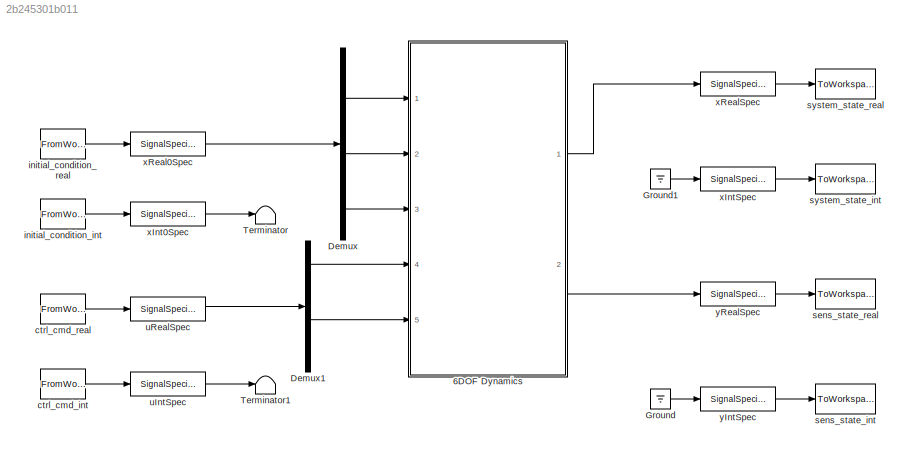
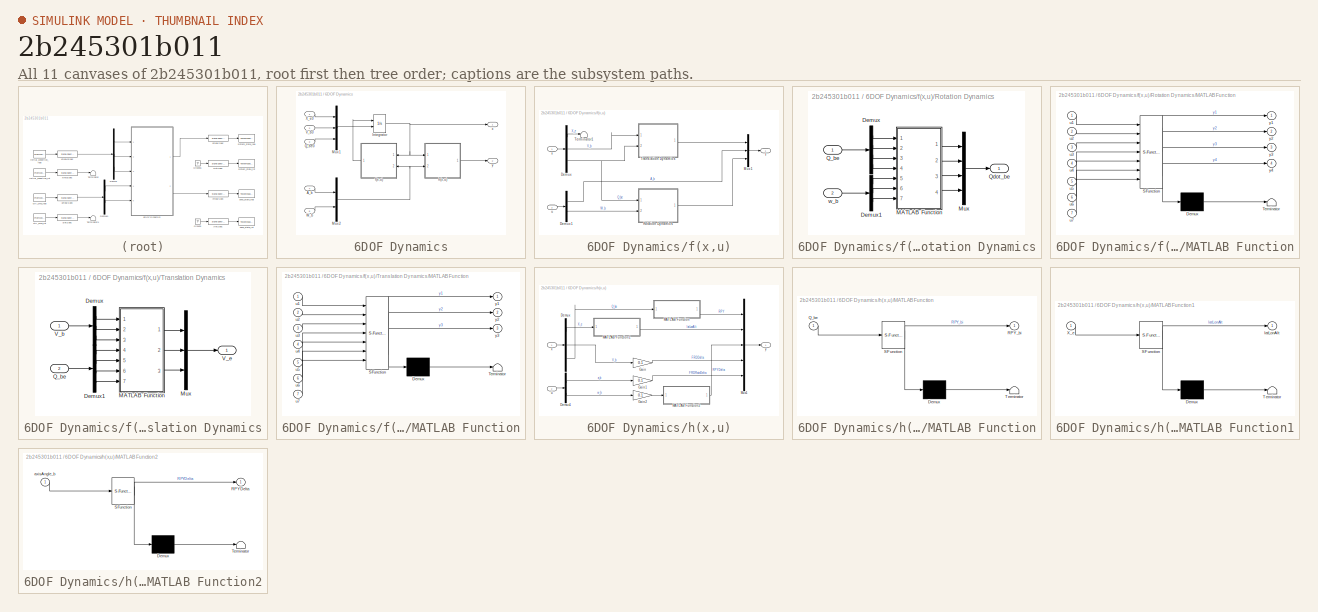
[diagram: thumbnail index - all 11 canvases of the model, root first then tree order]
MODEL slx_2b245301b011
KIND model
CONFIG AbsTol = auto
CONFIG FixedStep = auto
CONFIG MaxStep = auto
CONFIG MinStep = auto
CONFIG RelTol = 1e-3
CONFIG SampleTimeConstraint = Unconstrained
CONFIG Solver = ode45
CONFIG SolverMode = Auto
CONFIG SolverName = ode45
CONFIG StartTime = 0.0
CONFIG StopTime = 10.0
BLOCK [SubSystem] 6DOF Dynamics
  Ports = [5, 2]
  RequestExecContextInheritance = off
  Variant = off
BLOCK [Inport] 6DOF Dynamics/A_b
  IconDisplay = Port number
  Port = 4
BLOCK [Integrator] 6DOF Dynamics/Integrator
  ContinuousStateAttributes = 'ARDSimpleModelIntegratorState'
  InitialCondition = [veh_prms.xo(1:6);Euler2Quat(veh_prms.xo(7:9))]
  InitialConditionSource = external
  Ports = [2, 1]
BLOCK [Mux] 6DOF Dynamics/Mux1
  DisplayOption = bar
  Inputs = [3, 3, 4]
  Ports = [3, 1]
BLOCK [Mux] 6DOF Dynamics/Mux2
  DisplayOption = bar
  Inputs = [3, 3]
  Ports = [2, 1]
BLOCK [Inport] 6DOF Dynamics/Q_be0
  IconDisplay = Port number
  Port = 3
BLOCK [Inport] 6DOF Dynamics/V_b0
  IconDisplay = Port number
  Port = 2
BLOCK [Inport] 6DOF Dynamics/W_b
  IconDisplay = Port number
  Port = 5
BLOCK [Inport] 6DOF Dynamics/X_e0
  IconDisplay = Port number
BLOCK [SubSystem] 6DOF Dynamics/f(x,u)
  Ports = [2, 1]
  RequestExecContextInheritance = off
  Variant = off
BLOCK [Demux] 6DOF Dynamics/f(x,u)/Demux
  DisplayOption = bar
  Outputs = [3,3,4]
  Ports = [1, 3]
BLOCK [Demux] 6DOF Dynamics/f(x,u)/Demux1
  DisplayOption = bar
  Outputs = [3,3]
  Ports = [1, 2]
BLOCK [Mux] 6DOF Dynamics/f(x,u)/Mux1
  DisplayOption = bar
  Inputs = 3
  Ports = [3, 1]
BLOCK [SubSystem] 6DOF Dynamics/f(x,u)/Rotation Dynamics
  Ports = [2, 1]
  RequestExecContextInheritance = off
  Variant = off
BLOCK [Demux] 6DOF Dynamics/f(x,u)/Rotation Dynamics/Demux
  DisplayOption = bar
  Ports = [1, 4]
BLOCK [Demux] 6DOF Dynamics/f(x,u)/Rotation Dynamics/Demux1
  DisplayOption = bar
  Outputs = 3
  Ports = [1, 3]
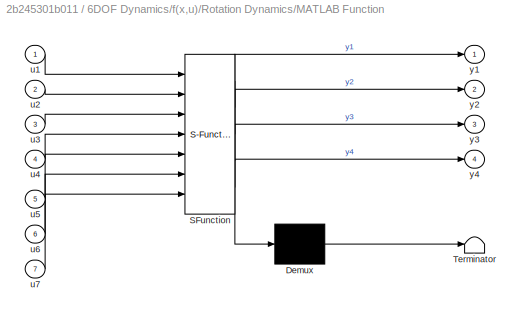
BLOCK [SubSystem] 6DOF Dynamics/f(x,u)/Rotation Dynamics/MATLAB Function
  ErrorFcn = Stateflow.Translate.translate
  PermitHierarchicalResolution = ExplicitOnly
  Ports = [7, 4]
  RequestExecContextInheritance = off
  SFBlockType = MATLAB Function
  TreatAsAtomicUnit = on
  Variant = off
BLOCK [Demux] 6DOF Dynamics/f(x,u)/Rotation Dynamics/MATLAB Function/ Demux 
  Outputs = 1
  Ports = [1, 1]
BLOCK [S-Function] 6DOF Dynamics/f(x,u)/Rotation Dynamics/MATLAB Function/ SFunction 
  EnableBusSupport = on
  FunctionName = sf_sfun
  PortCounts = [7 5]
  Ports = [7, 5]
  SFunctionDeploymentMode = off
  Tag = Stateflow S-Function ARDSimpleModel 2
BLOCK [Terminator] 6DOF Dynamics/f(x,u)/Rotation Dynamics/MATLAB Function/ Terminator 
BLOCK [Inport] 6DOF Dynamics/f(x,u)/Rotation Dynamics/MATLAB Function/u1
  IconDisplay = Port number
BLOCK [Inport] 6DOF Dynamics/f(x,u)/Rotation Dynamics/MATLAB Function/u2
  IconDisplay = Port number
  Port = 2
BLOCK [Inport] 6DOF Dynamics/f(x,u)/Rotation Dynamics/MATLAB Function/u3
  IconDisplay = Port number
  Port = 3
BLOCK [Inport] 6DOF Dynamics/f(x,u)/Rotation Dynamics/MATLAB Function/u4
  IconDisplay = Port number
  Port = 4
BLOCK [Inport] 6DOF Dynamics/f(x,u)/Rotation Dynamics/MATLAB Function/u5
  IconDisplay = Port number
  Port = 5
BLOCK [Inport] 6DOF Dynamics/f(x,u)/Rotation Dynamics/MATLAB Function/u6
  IconDisplay = Port number
  Port = 6
BLOCK [Inport] 6DOF Dynamics/f(x,u)/Rotation Dynamics/MATLAB Function/u7
  IconDisplay = Port number
  Port = 7
BLOCK [Outport] 6DOF Dynamics/f(x,u)/Rotation Dynamics/MATLAB Function/y1
  IconDisplay = Port number
BLOCK [Outport] 6DOF Dynamics/f(x,u)/Rotation Dynamics/MATLAB Function/y2
  IconDisplay = Port number
  Port = 2
BLOCK [Outport] 6DOF Dynamics/f(x,u)/Rotation Dynamics/MATLAB Function/y3
  IconDisplay = Port number
  Port = 3
BLOCK [Outport] 6DOF Dynamics/f(x,u)/Rotation Dynamics/MATLAB Function/y4
  IconDisplay = Port number
  Port = 4
BLOCK [Mux] 6DOF Dynamics/f(x,u)/Rotation Dynamics/Mux
  DisplayOption = bar
  Ports = [4, 1]
BLOCK [Inport] 6DOF Dynamics/f(x,u)/Rotation Dynamics/Q_be
  IconDisplay = Port number
BLOCK [Outport] 6DOF Dynamics/f(x,u)/Rotation Dynamics/Qdot_be
  IconDisplay = Port number
  PortDimensions = 4
BLOCK [Inport] 6DOF Dynamics/f(x,u)/Rotation Dynamics/w_b
  IconDisplay = Port number
  Port = 2
BLOCK [Terminator] 6DOF Dynamics/f(x,u)/Terminator1
BLOCK [SubSystem] 6DOF Dynamics/f(x,u)/Translation Dynamics
  Ports = [2, 1]
  RequestExecContextInheritance = off
  Variant = off
BLOCK [Demux] 6DOF Dynamics/f(x,u)/Translation Dynamics/Demux
  DisplayOption = bar
  Outputs = 3
  Ports = [1, 3]
BLOCK [Demux] 6DOF Dynamics/f(x,u)/Translation Dynamics/Demux1
  DisplayOption = bar
  Ports = [1, 4]
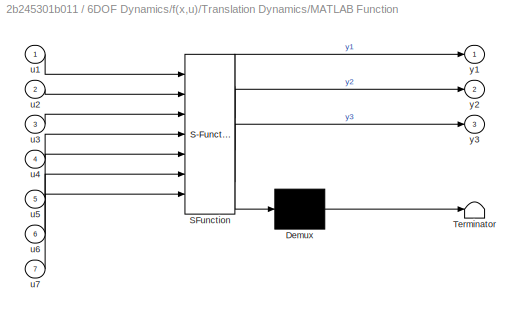
BLOCK [SubSystem] 6DOF Dynamics/f(x,u)/Translation Dynamics/MATLAB Function
  ErrorFcn = Stateflow.Translate.translate
  PermitHierarchicalResolution = ExplicitOnly
  Ports = [7, 3]
  RequestExecContextInheritance = off
  SFBlockType = MATLAB Function
  TreatAsAtomicUnit = on
  Variant = off
BLOCK [Demux] 6DOF Dynamics/f(x,u)/Translation Dynamics/MATLAB Function/ Demux 
  Outputs = 1
  Ports = [1, 1]
BLOCK [S-Function] 6DOF Dynamics/f(x,u)/Translation Dynamics/MATLAB Function/ SFunction 
  EnableBusSupport = on
  FunctionName = sf_sfun
  PortCounts = [7 4]
  Ports = [7, 4]
  SFunctionDeploymentMode = off
  Tag = Stateflow S-Function ARDSimpleModel 1
BLOCK [Terminator] 6DOF Dynamics/f(x,u)/Translation Dynamics/MATLAB Function/ Terminator 
BLOCK [Inport] 6DOF Dynamics/f(x,u)/Translation Dynamics/MATLAB Function/u1
  IconDisplay = Port number
BLOCK [Inport] 6DOF Dynamics/f(x,u)/Translation Dynamics/MATLAB Function/u2
  IconDisplay = Port number
  Port = 2
BLOCK [Inport] 6DOF Dynamics/f(x,u)/Translation Dynamics/MATLAB Function/u3
  IconDisplay = Port number
  Port = 3
BLOCK [Inport] 6DOF Dynamics/f(x,u)/Translation Dynamics/MATLAB Function/u4
  IconDisplay = Port number
  Port = 4
BLOCK [Inport] 6DOF Dynamics/f(x,u)/Translation Dynamics/MATLAB Function/u5
  IconDisplay = Port number
  Port = 5
BLOCK [Inport] 6DOF Dynamics/f(x,u)/Translation Dynamics/MATLAB Function/u6
  IconDisplay = Port number
  Port = 6
BLOCK [Inport] 6DOF Dynamics/f(x,u)/Translation Dynamics/MATLAB Function/u7
  IconDisplay = Port number
  Port = 7
BLOCK [Outport] 6DOF Dynamics/f(x,u)/Translation Dynamics/MATLAB Function/y1
  IconDisplay = Port number
BLOCK [Outport] 6DOF Dynamics/f(x,u)/Translation Dynamics/MATLAB Function/y2
  IconDisplay = Port number
  Port = 2
BLOCK [Outport] 6DOF Dynamics/f(x,u)/Translation Dynamics/MATLAB Function/y3
  IconDisplay = Port number
  Port = 3
BLOCK [Mux] 6DOF Dynamics/f(x,u)/Translation Dynamics/Mux
  DisplayOption = bar
  Inputs = 3
  Ports = [3, 1]
BLOCK [Inport] 6DOF Dynamics/f(x,u)/Translation Dynamics/Q_be
  IconDisplay = Port number
  Port = 2
BLOCK [Inport] 6DOF Dynamics/f(x,u)/Translation Dynamics/V_b
  IconDisplay = Port number
BLOCK [Outport] 6DOF Dynamics/f(x,u)/Translation Dynamics/V_e
  IconDisplay = Port number
  PortDimensions = 3
BLOCK [Outport] 6DOF Dynamics/f(x,u)/f
  IconDisplay = Port number
BLOCK [Inport] 6DOF Dynamics/f(x,u)/u
  IconDisplay = Port number
  Port = 2
BLOCK [Inport] 6DOF Dynamics/f(x,u)/x
  IconDisplay = Port number
BLOCK [SubSystem] 6DOF Dynamics/h(x,u)
  Ports = [2, 1]
  RequestExecContextInheritance = off
  Variant = off
BLOCK [Demux] 6DOF Dynamics/h(x,u)/Demux
  DisplayOption = bar
  Outputs = [3,3,4]
  Ports = [1, 3]
BLOCK [Demux] 6DOF Dynamics/h(x,u)/Demux1
  DisplayOption = bar
  Outputs = [3,3]
  Ports = [1, 2]
BLOCK [Gain] 6DOF Dynamics/h(x,u)/Gain
  Gain = 0.1
  OutDataTypeStr = Inherit: Inherit via internal rule
  ParamDataTypeStr = Inherit: Inherit via internal rule
  SaturateOnIntegerOverflow = off
BLOCK [Gain] 6DOF Dynamics/h(x,u)/Gain1
  Gain = 0.1
  OutDataTypeStr = Inherit: Inherit via internal rule
  ParamDataTypeStr = Inherit: Inherit via internal rule
  SaturateOnIntegerOverflow = off
BLOCK [Gain] 6DOF Dynamics/h(x,u)/Gain2
  Gain = 0.1
  OutDataTypeStr = Inherit: Inherit via internal rule
  ParamDataTypeStr = Inherit: Inherit via internal rule
  SaturateOnIntegerOverflow = off
BLOCK [SubSystem] 6DOF Dynamics/h(x,u)/MATLAB Function
  ErrorFcn = Stateflow.Translate.translate
  PermitHierarchicalResolution = ExplicitOnly
  Ports = [1, 1]
  RequestExecContextInheritance = off
  SFBlockType = MATLAB Function
  TreatAsAtomicUnit = on
  Variant = off
BLOCK [Demux] 6DOF Dynamics/h(x,u)/MATLAB Function/ Demux 
  Outputs = 1
  Ports = [1, 1]
BLOCK [S-Function] 6DOF Dynamics/h(x,u)/MATLAB Function/ SFunction 
  EnableBusSupport = on
  FunctionName = sf_sfun
  PortCounts = [1 2]
  Ports = [1, 2]
  SFunctionDeploymentMode = off
  Tag = Stateflow S-Function ARDSimpleModel 3
BLOCK [Terminator] 6DOF Dynamics/h(x,u)/MATLAB Function/ Terminator 
BLOCK [Inport] 6DOF Dynamics/h(x,u)/MATLAB Function/Q_be
  IconDisplay = Port number
BLOCK [Outport] 6DOF Dynamics/h(x,u)/MATLAB Function/RPY_bi
  IconDisplay = Port number
BLOCK [SubSystem] 6DOF Dynamics/h(x,u)/MATLAB Function1
  ErrorFcn = Stateflow.Translate.translate
  PermitHierarchicalResolution = ExplicitOnly
  Ports = [1, 1]
  RequestExecContextInheritance = off
  SFBlockType = MATLAB Function
  TreatAsAtomicUnit = on
  Variant = off
BLOCK [Demux] 6DOF Dynamics/h(x,u)/MATLAB Function1/ Demux 
  Outputs = 1
  Ports = [1, 1]
BLOCK [S-Function] 6DOF Dynamics/h(x,u)/MATLAB Function1/ SFunction 
  EnableBusSupport = on
  FunctionName = sf_sfun
  PortCounts = [1 2]
  Ports = [1, 2]
  SFunctionDeploymentMode = off
  Tag = Stateflow S-Function ARDSimpleModel 4
BLOCK [Terminator] 6DOF Dynamics/h(x,u)/MATLAB Function1/ Terminator 
BLOCK [Inport] 6DOF Dynamics/h(x,u)/MATLAB Function1/X_e
  IconDisplay = Port number
BLOCK [Outport] 6DOF Dynamics/h(x,u)/MATLAB Function1/latLonAlt
  IconDisplay = Port number
BLOCK [SubSystem] 6DOF Dynamics/h(x,u)/MATLAB Function2
  ErrorFcn = Stateflow.Translate.translate
  PermitHierarchicalResolution = ExplicitOnly
  Ports = [1, 1]
  RequestExecContextInheritance = off
  SFBlockType = MATLAB Function
  TreatAsAtomicUnit = on
  Variant = off
BLOCK [Demux] 6DOF Dynamics/h(x,u)/MATLAB Function2/ Demux 
  Outputs = 1
  Ports = [1, 1]
BLOCK [S-Function] 6DOF Dynamics/h(x,u)/MATLAB Function2/ SFunction 
  EnableBusSupport = on
  FunctionName = sf_sfun
  PortCounts = [1 2]
  Ports = [1, 2]
  SFunctionDeploymentMode = off
  Tag = Stateflow S-Function ARDSimpleModel 5
BLOCK [Terminator] 6DOF Dynamics/h(x,u)/MATLAB Function2/ Terminator 
BLOCK [Outport] 6DOF Dynamics/h(x,u)/MATLAB Function2/RPYDelta
  IconDisplay = Port number
BLOCK [Inport] 6DOF Dynamics/h(x,u)/MATLAB Function2/axisAngle_b
  IconDisplay = Port number
BLOCK [Mux] 6DOF Dynamics/h(x,u)/Mux1
  DisplayOption = bar
  Inputs = 5
  Ports = [5, 1]
BLOCK [Inport] 6DOF Dynamics/h(x,u)/u
  IconDisplay = Port number
  Port = 2
BLOCK [Inport] 6DOF Dynamics/h(x,u)/x
  IconDisplay = Port number
BLOCK [Outport] 6DOF Dynamics/h(x,u)/y
  IconDisplay = Port number
BLOCK [Outport] 6DOF Dynamics/x
  IconDisplay = Port number
BLOCK [Outport] 6DOF Dynamics/y
  IconDisplay = Port number
  Port = 2
BLOCK [Demux] Demux
  DisplayOption = bar
  Outputs = [3,3,4]
  Ports = [1, 3]
BLOCK [Demux] Demux1
  DisplayOption = bar
  Outputs = [3,3]
  Ports = [1, 2]
BLOCK [Ground] Ground
BLOCK [Ground] Ground1
BLOCK [Terminator] Terminator
BLOCK [Terminator] Terminator1
BLOCK [FromWorkspace] ctrl_cmd_int
  Interpolate = off
  OutDataTypeStr = uint8
  OutputAfterFinalValue = Holding final value
  SampleTime = 0.1
  VariableName = uInt
  ZeroCross = on
BLOCK [FromWorkspace] ctrl_cmd_real
  Interpolate = off
  OutDataTypeStr = double
  OutputAfterFinalValue = Holding final value
  SampleTime = 0.1
  VariableName = uReal
  ZeroCross = on
BLOCK [FromWorkspace] initial_condition_int
  Interpolate = off
  OutDataTypeStr = uint8
  OutputAfterFinalValue = Holding final value
  SampleTime = 0.1
  VariableName = xInt0
  ZeroCross = on
BLOCK [FromWorkspace] initial_condition_real
  Interpolate = off
  OutDataTypeStr = double
  OutputAfterFinalValue = Holding final value
  SampleTime = 0.1
  VariableName = xReal0
  ZeroCross = on
BLOCK [ToWorkspace] sens_state_int
  MaxDataPoints = 1
  Ports = [1]
  SampleTime = -1
  Save2DSignal = 3-D array (concatenate along third dimension)
  VariableName = yInt
BLOCK [ToWorkspace] sens_state_real
  MaxDataPoints = 1
  Ports = [1]
  SampleTime = -1
  Save2DSignal = 3-D array (concatenate along third dimension)
  VariableName = yReal
BLOCK [ToWorkspace] system_state_int
  MaxDataPoints = 1
  Ports = [1]
  SampleTime = -1
  Save2DSignal = 3-D array (concatenate along third dimension)
  VariableName = xInt
BLOCK [ToWorkspace] system_state_real
  MaxDataPoints = 1
  Ports = [1]
  SampleTime = -1
  Save2DSignal = 3-D array (concatenate along third dimension)
  VariableName = xReal
BLOCK [SignalSpecification] uIntSpec
  Dimensions = 1
  OutDataTypeStr = uint8
BLOCK [SignalSpecification] uRealSpec
  Dimensions = 6
  OutDataTypeStr = double
BLOCK [SignalSpecification] xInt0Spec
  Dimensions = 1
  OutDataTypeStr = uint8
BLOCK [SignalSpecification] xIntSpec
  Dimensions = 1
  OutDataTypeStr = uint8
BLOCK [SignalSpecification] xReal0Spec
  Dimensions = 10
  OutDataTypeStr = double
BLOCK [SignalSpecification] xRealSpec
  Dimensions = 10
  OutDataTypeStr = double
BLOCK [SignalSpecification] yIntSpec
  Dimensions = 1
  OutDataTypeStr = uint8
BLOCK [SignalSpecification] yRealSpec
  Dimensions = 15
  OutDataTypeStr = double
LINE 6DOF Dynamics/A_b:1 -> 6DOF Dynamics/Mux2:1
NET 6DOF Dynamics/Integrator:1 -> 6DOF Dynamics/f(x,u):1, 6DOF Dynamics/h(x,u):1, 6DOF Dynamics/x:1
LINE 6DOF Dynamics/Mux1:1 -> 6DOF Dynamics/Integrator:2
NET 6DOF Dynamics/Mux2:1 -> 6DOF Dynamics/f(x,u):2, 6DOF Dynamics/h(x,u):2
LINE 6DOF Dynamics/Q_be0:1 -> 6DOF Dynamics/Mux1:3
LINE 6DOF Dynamics/V_b0:1 -> 6DOF Dynamics/Mux1:2
LINE 6DOF Dynamics/W_b:1 -> 6DOF Dynamics/Mux2:2
LINE 6DOF Dynamics/X_e0:1 -> 6DOF Dynamics/Mux1:1
LINE 6DOF Dynamics/f(x,u)/Demux1:1 -> 6DOF Dynamics/f(x,u)/Mux1:2
LINE 6DOF Dynamics/f(x,u)/Demux1:2 -> 6DOF Dynamics/f(x,u)/Rotation Dynamics:2
LINE 6DOF Dynamics/f(x,u)/Demux:1 -> 6DOF Dynamics/f(x,u)/Terminator1:1
LINE 6DOF Dynamics/f(x,u)/Demux:2 -> 6DOF Dynamics/f(x,u)/Translation Dynamics:1
NET 6DOF Dynamics/f(x,u)/Demux:3 -> 6DOF Dynamics/f(x,u)/Rotation Dynamics:1, 6DOF Dynamics/f(x,u)/Translation Dynamics:2
LINE 6DOF Dynamics/f(x,u)/Mux1:1 -> 6DOF Dynamics/f(x,u)/f:1
LINE 6DOF Dynamics/f(x,u)/Rotation Dynamics/Demux1:1 -> 6DOF Dynamics/f(x,u)/Rotation Dynamics/MATLAB Function:5
LINE 6DOF Dynamics/f(x,u)/Rotation Dynamics/Demux1:2 -> 6DOF Dynamics/f(x,u)/Rotation Dynamics/MATLAB Function:6
LINE 6DOF Dynamics/f(x,u)/Rotation Dynamics/Demux1:3 -> 6DOF Dynamics/f(x,u)/Rotation Dynamics/MATLAB Function:7
LINE 6DOF Dynamics/f(x,u)/Rotation Dynamics/Demux:1 -> 6DOF Dynamics/f(x,u)/Rotation Dynamics/MATLAB Function:1
LINE 6DOF Dynamics/f(x,u)/Rotation Dynamics/Demux:2 -> 6DOF Dynamics/f(x,u)/Rotation Dynamics/MATLAB Function:2
LINE 6DOF Dynamics/f(x,u)/Rotation Dynamics/Demux:3 -> 6DOF Dynamics/f(x,u)/Rotation Dynamics/MATLAB Function:3
LINE 6DOF Dynamics/f(x,u)/Rotation Dynamics/Demux:4 -> 6DOF Dynamics/f(x,u)/Rotation Dynamics/MATLAB Function:4
LINE 6DOF Dynamics/f(x,u)/Rotation Dynamics/MATLAB Function:1 -> 6DOF Dynamics/f(x,u)/Rotation Dynamics/Mux:1
LINE 6DOF Dynamics/f(x,u)/Rotation Dynamics/MATLAB Function:2 -> 6DOF Dynamics/f(x,u)/Rotation Dynamics/Mux:2
LINE 6DOF Dynamics/f(x,u)/Rotation Dynamics/MATLAB Function:3 -> 6DOF Dynamics/f(x,u)/Rotation Dynamics/Mux:3
LINE 6DOF Dynamics/f(x,u)/Rotation Dynamics/MATLAB Function:4 -> 6DOF Dynamics/f(x,u)/Rotation Dynamics/Mux:4
LINE 6DOF Dynamics/f(x,u)/Rotation Dynamics/Mux:1 -> 6DOF Dynamics/f(x,u)/Rotation Dynamics/Qdot_be:1
LINE 6DOF Dynamics/f(x,u)/Rotation Dynamics/Q_be:1 -> 6DOF Dynamics/f(x,u)/Rotation Dynamics/Demux:1
LINE 6DOF Dynamics/f(x,u)/Rotation Dynamics/w_b:1 -> 6DOF Dynamics/f(x,u)/Rotation Dynamics/Demux1:1
LINE 6DOF Dynamics/f(x,u)/Rotation Dynamics:1 -> 6DOF Dynamics/f(x,u)/Mux1:3
LINE 6DOF Dynamics/f(x,u)/Translation Dynamics/Demux1:1 -> 6DOF Dynamics/f(x,u)/Translation Dynamics/MATLAB Function:4
LINE 6DOF Dynamics/f(x,u)/Translation Dynamics/Demux1:2 -> 6DOF Dynamics/f(x,u)/Translation Dynamics/MATLAB Function:5
LINE 6DOF Dynamics/f(x,u)/Translation Dynamics/Demux1:3 -> 6DOF Dynamics/f(x,u)/Translation Dynamics/MATLAB Function:6
LINE 6DOF Dynamics/f(x,u)/Translation Dynamics/Demux1:4 -> 6DOF Dynamics/f(x,u)/Translation Dynamics/MATLAB Function:7
LINE 6DOF Dynamics/f(x,u)/Translation Dynamics/Demux:1 -> 6DOF Dynamics/f(x,u)/Translation Dynamics/MATLAB Function:1
LINE 6DOF Dynamics/f(x,u)/Translation Dynamics/Demux:2 -> 6DOF Dynamics/f(x,u)/Translation Dynamics/MATLAB Function:2
LINE 6DOF Dynamics/f(x,u)/Translation Dynamics/Demux:3 -> 6DOF Dynamics/f(x,u)/Translation Dynamics/MATLAB Function:3
LINE 6DOF Dynamics/f(x,u)/Translation Dynamics/MATLAB Function:1 -> 6DOF Dynamics/f(x,u)/Translation Dynamics/Mux:1
LINE 6DOF Dynamics/f(x,u)/Translation Dynamics/MATLAB Function:2 -> 6DOF Dynamics/f(x,u)/Translation Dynamics/Mux:2
LINE 6DOF Dynamics/f(x,u)/Translation Dynamics/MATLAB Function:3 -> 6DOF Dynamics/f(x,u)/Translation Dynamics/Mux:3
LINE 6DOF Dynamics/f(x,u)/Translation Dynamics/Mux:1 -> 6DOF Dynamics/f(x,u)/Translation Dynamics/V_e:1
LINE 6DOF Dynamics/f(x,u)/Translation Dynamics/Q_be:1 -> 6DOF Dynamics/f(x,u)/Translation Dynamics/Demux1:1
LINE 6DOF Dynamics/f(x,u)/Translation Dynamics/V_b:1 -> 6DOF Dynamics/f(x,u)/Translation Dynamics/Demux:1
LINE 6DOF Dynamics/f(x,u)/Translation Dynamics:1 -> 6DOF Dynamics/f(x,u)/Mux1:1
LINE 6DOF Dynamics/f(x,u)/u:1 -> 6DOF Dynamics/f(x,u)/Demux1:1
LINE 6DOF Dynamics/f(x,u)/x:1 -> 6DOF Dynamics/f(x,u)/Demux:1
LINE 6DOF Dynamics/f(x,u):1 -> 6DOF Dynamics/Integrator:1
LINE 6DOF Dynamics/h(x,u)/Demux1:1 -> 6DOF Dynamics/h(x,u)/Gain1:1
LINE 6DOF Dynamics/h(x,u)/Demux1:2 -> 6DOF Dynamics/h(x,u)/Gain2:1
LINE 6DOF Dynamics/h(x,u)/Demux:1 -> 6DOF Dynamics/h(x,u)/MATLAB Function1:1
LINE 6DOF Dynamics/h(x,u)/Demux:2 -> 6DOF Dynamics/h(x,u)/Gain:1
LINE 6DOF Dynamics/h(x,u)/Demux:3 -> 6DOF Dynamics/h(x,u)/MATLAB Function:1
LINE 6DOF Dynamics/h(x,u)/Gain1:1 -> 6DOF Dynamics/h(x,u)/Mux1:5
LINE 6DOF Dynamics/h(x,u)/Gain2:1 -> 6DOF Dynamics/h(x,u)/MATLAB Function2:1
LINE 6DOF Dynamics/h(x,u)/Gain:1 -> 6DOF Dynamics/h(x,u)/Mux1:4
LINE 6DOF Dynamics/h(x,u)/MATLAB Function1:1 -> 6DOF Dynamics/h(x,u)/Mux1:2
LINE 6DOF Dynamics/h(x,u)/MATLAB Function2:1 -> 6DOF Dynamics/h(x,u)/Mux1:3
LINE 6DOF Dynamics/h(x,u)/MATLAB Function:1 -> 6DOF Dynamics/h(x,u)/Mux1:1
LINE 6DOF Dynamics/h(x,u)/Mux1:1 -> 6DOF Dynamics/h(x,u)/y:1
LINE 6DOF Dynamics/h(x,u)/u:1 -> 6DOF Dynamics/h(x,u)/Demux1:1
LINE 6DOF Dynamics/h(x,u)/x:1 -> 6DOF Dynamics/h(x,u)/Demux:1
LINE 6DOF Dynamics/h(x,u):1 -> 6DOF Dynamics/y:1
LINE 6DOF Dynamics:1 -> xRealSpec:1
LINE 6DOF Dynamics:2 -> yRealSpec:1
LINE Demux1:1 -> 6DOF Dynamics:4
LINE Demux1:2 -> 6DOF Dynamics:5
LINE Demux:1 -> 6DOF Dynamics:1
LINE Demux:2 -> 6DOF Dynamics:2
LINE Demux:3 -> 6DOF Dynamics:3
LINE Ground1:1 -> xIntSpec:1
LINE Ground:1 -> yIntSpec:1
LINE ctrl_cmd_int:1 -> uIntSpec:1
LINE ctrl_cmd_real:1 -> uRealSpec:1
LINE initial_condition_int:1 -> xInt0Spec:1
LINE initial_condition_real:1 -> xReal0Spec:1
LINE uIntSpec:1 -> Terminator1:1
LINE uRealSpec:1 -> Demux1:1
LINE xInt0Spec:1 -> Terminator:1
LINE xIntSpec:1 -> system_state_int:1
LINE xReal0Spec:1 -> Demux:1
LINE xRealSpec:1 -> system_state_real:1
LINE yIntSpec:1 -> sens_state_int:1
LINE yRealSpec:1 -> sens_state_real:1
note: NET lines group one-source signal fan-out (src -> all destinations, sorted); 1:1 wires keep LINE
CHART 6DOF Dynamics/f(x,u)/Translation Dynamics/MATLAB Function states=1 transitions=1
  STATE_LABEL 'eML_blk_kernel()'
  STATE_LABEL 'SCRIPT:\nfunction [y1, y2, y3] = fcn(u1, u2, u3, u4, u5, u6, u7)\n%#codegen\nx = quatToMatrix(u4, u5, u6, u7)*[u1; u2; u3];\ny1 = x(1);\ny2 = x(2);\ny3 = x(3);\nend\n\nfunction [qNorm0, qNorm1, qNorm2, qNorm3] = quatNorm(q0, q1, q2, q3)\nqNorm0 = q0;\nqNorm1 = q1;\nqNorm2 = q2;\nqNorm3 = q3;\nn = sqrt(q0.*q0+q1.*q1+q2.*q2+q3.*q3);\nsmall = find(n<eps);\nqNorm0(small) = 1.0;\nqNorm1(small) = 0.0;\nqNorm2(small) = 0....<+643ch>'
CHART 6DOF Dynamics/f(x,u)/Rotation Dynamics/MATLAB Function states=1 transitions=1
  STATE_LABEL 'eML_blk_kernel()'
  STATE_LABEL 'SCRIPT:\nfunction [y1, y2, y3, y4] = fcn(u1, u2, u3, u4, u5, u6, u7)\n%#codegen\nwb = [u5; u6; u7];\nww = quatToMatrix(u1, u2, u3, u4)*wb;\nx = 0.5*quatToHomo(u1, u2, u3, u4)*[0; ww];\ny1 = x(1);\ny2 = x(2);\ny3 = x(3);\ny4 = x(4);\nend\n\nfunction R = quatToMatrix(q0, q1, q2, q3)\n[q0, q1, q2, q3] = quatNorm(q0, q1, q2, q3);\nq00 = q0.*q0;\nq11 = q1.*q1;\nq22 = q2.*q2;\nq33 = q3.*q3;\nq01 = q0.*q1;\nq12 = q1.*q2;\nq...<+1050ch>'
CHART 6DOF Dynamics/h(x,u)/MATLAB Function states=1 transitions=1
  STATE_LABEL 'eML_blk_kernel()'
  STATE_LABEL "SCRIPT:\nfunction RPY_bi = fcn(Q_be)\n%#codegen\nbetobi = quatToHomo(sqrt(2)/2, 0, sqrt(2)/2, 0);\nQ_bi = betobi*[Q_be(1); Q_be(2); Q_be(3); Q_be(4)];\nRPY_bi = quatToEuler(Q_bi)';\nend   \n\nfunction y = quatToEuler(q)\ny = zeros(3, 1);\nq0 = q(1);\nq1 = q(2);\nq2 = q(3);\nq3 = q(4);\nq00 = q0.*q0;\nq11 = q1.*q1;\nq22 = q2.*q2;\nq33 = q3.*q3;\nq01 = q0.*q1;\nq12 = q1.*q2;\nq23 = q2.*q3;\nq03 = q0.*q3;\nq02 = q0.*q2;\nq...<+450ch>"
CHART 6DOF Dynamics/h(x,u)/MATLAB Function1 states=1 transitions=1
  STATE_LABEL 'eML_blk_kernel()'
  STATE_LABEL 'SCRIPT:\nfunction latLonAlt = fcn(X_e)\n%#codegen\nx = X_e(1);\ny = X_e(2);\nz = X_e(3);\na = earth.WGS84.majorRadius;\nfinv = earth.WGS84.inverseFlattening;\nf = 1.0/finv;\nb = a-a/finv;\ne2 = 2.0*f-f*f;\nep2 = f*(2.0-f)/((1.0-f)*(1.0-f));\nr2 = x.*x+y.*y;\nr = sqrt(r2);\nE2 = a*a-b*b;\nF = 54.0*b*b*z.*z;\nG = r2+(1.0-e2)*z.*z-e2*E2;\nc = (e2*e2*F.*r2)./(G.*G.*G);\ns = power(1.0+c+sqrt(max(c.*c+2.0*c, 0.0)), 1.0/3...<+373ch>'
CHART 6DOF Dynamics/h(x,u)/MATLAB Function2 states=1 transitions=1
  STATE_LABEL 'eML_blk_kernel()'
  STATE_LABEL "SCRIPT:\nfunction RPYDelta = fcn(axisAngle_b)\n%#codegen\naa = [axisAngle_b(1); axisAngle_b(2); axisAngle_b(3)];\naaNorm = sqrt(aa'*aa);\nif(aaNorm<eps)\n  quatDelta = [1; 0; 0; 0];\nelse\n  halfAngle = aaNorm/2.0;\n  quatDelta = [cos(halfAngle); aa/aaNorm*sin(halfAngle)];\nend\nRPYDelta = quatToEuler(quatDelta)';\nend\n\nfunction y = quatToEuler(q)\ny = zeros(3, 1);\nq0 = q(1);\nq1 = q(2);\nq2 = q(3);\nq3 = q(4);\nq...<+285ch>"
